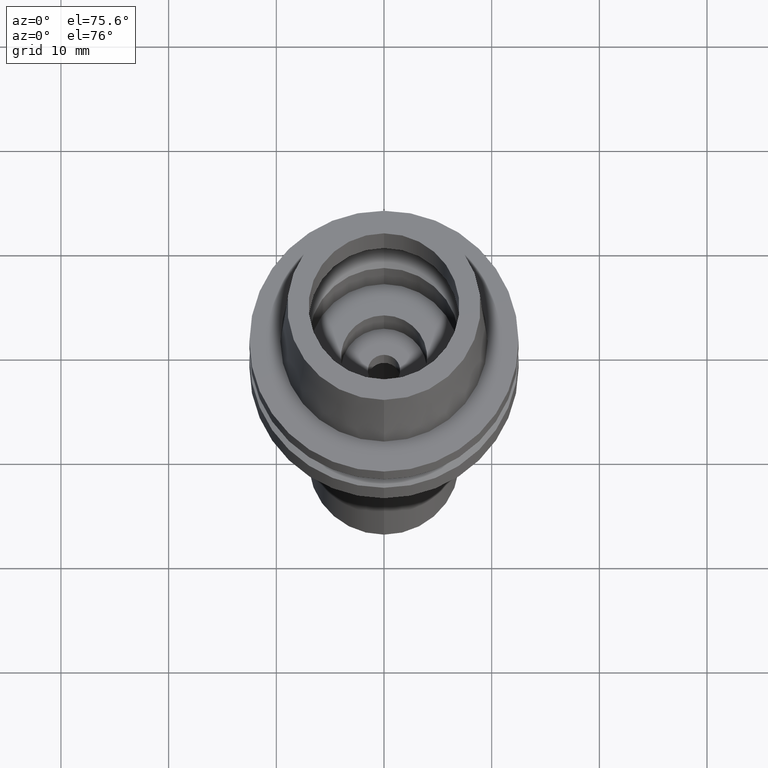
[diagram: clean part render]
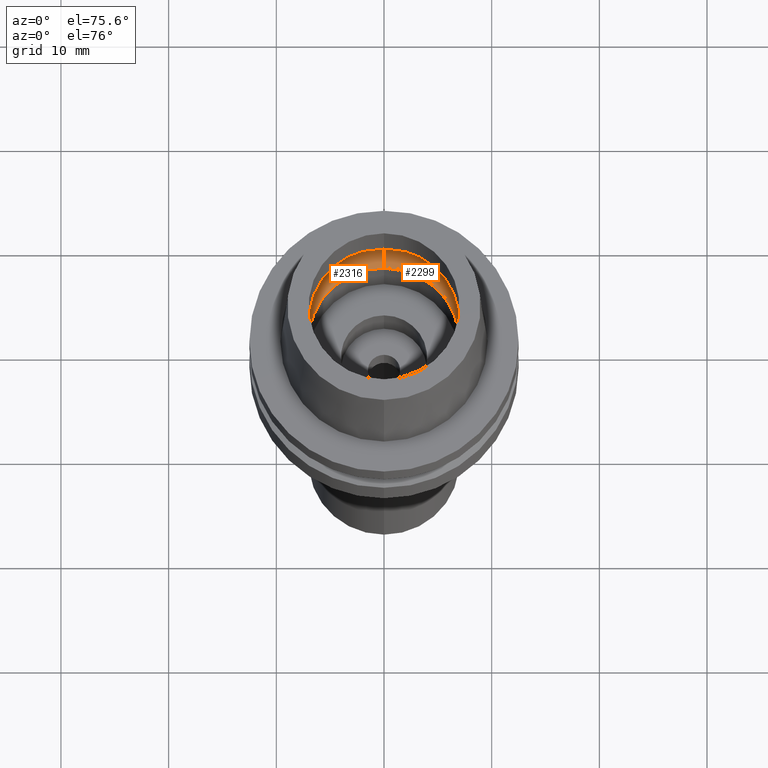
[diagram: same view with one multi-face feature highlighted, each face labeled with its STEP entity id]
A machine part, auxiliary view. The highlighted faces form ONE feature: a constant-radius fillet chain: 2 tangent blend faces with common blend radius 3 mm. The faces share edges in the B-rep.
Their STEP definitions:
[1] entity #2299 (Torus):
#62 = CARTESIAN_POINT ( 'NONE',  ( 0.0000000000000000000, 5.200000000000000178, 2.449999999999999734 ) ) ;
#120 = DIRECTION ( 'NONE',  ( 0.0000000000000000000, 1.000000000000000000, 0.0000000000000000000 ) ) ;
#263 = AXIS2_PLACEMENT_3D ( 'NONE', #2331, #856, #473 ) ;
#386 = VERTEX_POINT ( 'NONE', #974 ) ;
#473 = DIRECTION ( 'NONE',  ( 0.0000000000000000000, -1.000000000000000000, 0.0000000000000000000 ) ) ;
#547 = EDGE_CURVE ( 'NONE', #386, #1169, #1233, .T. ) ;
#589 = CIRCLE ( 'NONE', #1435, 3.000000000000000000 ) ;
#741 = CARTESIAN_POINT ( 'NONE',  ( 0.0000000000000000000, -8.200000000000001066, 2.449999999999999734 ) ) ;
#856 = DIRECTION ( 'NONE',  ( 0.0000000000000000000, 0.0000000000000000000, 1.000000000000000000 ) ) ;
#923 = CIRCLE ( 'NONE', #2528, 3.000000000000000000 ) ;
#934 = CARTESIAN_POINT ( 'NONE',  ( 0.0000000000000000000, 7.000000000000000000, 0.05000000000000000278 ) ) ;
#961 = EDGE_CURVE ( 'NONE', #1829, #2201, #2268, .T. ) ;
#974 = CARTESIAN_POINT ( 'NONE',  ( 0.0000000000000000000, -7.000000000000000000, 0.05000000000000000278 ) ) ;
#1022 = EDGE_CURVE ( 'NONE', #386, #2201, #589, .T. ) ;
#1030 = CARTESIAN_POINT ( 'NONE',  ( 0.0000000000000000000, 0.0000000000000000000, 2.449999999999999734 ) ) ;
#1163 = CARTESIAN_POINT ( 'NONE',  ( 0.0000000000000000000, 0.0000000000000000000, 2.449999999999999734 ) ) ;
#1169 = VERTEX_POINT ( 'NONE', #934 ) ;
#1205 = DIRECTION ( 'NONE',  ( 0.0000000000000000000, 1.000000000000000000, 0.0000000000000000000 ) ) ;
#1233 = CIRCLE ( 'NONE', #263, 7.000000000000000000 ) ;
#1310 = DIRECTION ( 'NONE',  ( 0.0000000000000000000, 0.0000000000000000000, 1.000000000000000000 ) ) ;
#1311 = AXIS2_PLACEMENT_3D ( 'NONE', #1163, #1310, #120 ) ;
#1339 = EDGE_CURVE ( 'NONE', #1169, #1829, #923, .T. ) ;
#1432 = DIRECTION ( 'NONE',  ( 1.000000000000000000, 0.0000000000000000000, 0.0000000000000000000 ) ) ;
#1435 = AXIS2_PLACEMENT_3D ( 'NONE', #1618, #2229, #2459 ) ;
#1618 = CARTESIAN_POINT ( 'NONE',  ( 0.0000000000000000000, -5.200000000000000178, 2.449999999999999734 ) ) ;
#1664 = CARTESIAN_POINT ( 'NONE',  ( 0.0000000000000000000, 8.200000000000001066, 2.449999999999999734 ) ) ;
#1817 = DIRECTION ( 'NONE',  ( 0.0000000000000000000, 0.0000000000000000000, -1.000000000000000000 ) ) ;
#1829 = VERTEX_POINT ( 'NONE', #1664 ) ;
#2012 = ORIENTED_EDGE ( 'NONE', *, *, #1339, .F. ) ;
#2117 = ORIENTED_EDGE ( 'NONE', *, *, #961, .F. ) ;
#2181 = FACE_OUTER_BOUND ( 'NONE', #2681, .T. ) ;
#2201 = VERTEX_POINT ( 'NONE', #741 ) ;
#2229 = DIRECTION ( 'NONE',  ( -1.000000000000000000, 0.0000000000000000000, 0.0000000000000000000 ) ) ;
#2268 = CIRCLE ( 'NONE', #2360, 8.200000000000001066 ) ;
#2299 = ADVANCED_FACE ( 'NONE', ( #2181 ), #2488, .F. ) ;
#2331 = CARTESIAN_POINT ( 'NONE',  ( 0.0000000000000000000, 0.0000000000000000000, 0.05000000000000000278 ) ) ;
#2360 = AXIS2_PLACEMENT_3D ( 'NONE', #1030, #1817, #1205 ) ;
#2450 = ORIENTED_EDGE ( 'NONE', *, *, #1022, .T. ) ;
#2459 = DIRECTION ( 'NONE',  ( 0.0000000000000000000, -0.5999999999999998668, -0.8000000000000001554 ) ) ;
#2488 = TOROIDAL_SURFACE ( 'NONE', #1311, 5.200000000000000178, 3.000000000000000000 ) ;
#2491 = ORIENTED_EDGE ( 'NONE', *, *, #547, .F. ) ;
#2501 = DIRECTION ( 'NONE',  ( 0.0000000000000000000, 0.5999999999999998668, -0.8000000000000001554 ) ) ;
#2528 = AXIS2_PLACEMENT_3D ( 'NONE', #62, #1432, #2501 ) ;
#2681 = EDGE_LOOP ( 'NONE', ( #2491, #2450, #2117, #2012 ) ) ;
[2] entity #2316 (Torus):
#62 = CARTESIAN_POINT ( 'NONE',  ( 0.0000000000000000000, 5.200000000000000178, 2.449999999999999734 ) ) ;
#224 = EDGE_CURVE ( 'NONE', #1169, #386, #531, .T. ) ;
#386 = VERTEX_POINT ( 'NONE', #974 ) ;
#531 = CIRCLE ( 'NONE', #1472, 7.000000000000000000 ) ;
#589 = CIRCLE ( 'NONE', #1435, 3.000000000000000000 ) ;
#741 = CARTESIAN_POINT ( 'NONE',  ( 0.0000000000000000000, -8.200000000000001066, 2.449999999999999734 ) ) ;
#767 = DIRECTION ( 'NONE',  ( 0.0000000000000000000, 1.000000000000000000, 0.0000000000000000000 ) ) ;
#822 = FACE_OUTER_BOUND ( 'NONE', #2185, .T. ) ;
#921 = CARTESIAN_POINT ( 'NONE',  ( 0.0000000000000000000, 0.0000000000000000000, 0.05000000000000000278 ) ) ;
#923 = CIRCLE ( 'NONE', #2528, 3.000000000000000000 ) ;
#934 = CARTESIAN_POINT ( 'NONE',  ( 0.0000000000000000000, 7.000000000000000000, 0.05000000000000000278 ) ) ;
#974 = CARTESIAN_POINT ( 'NONE',  ( 0.0000000000000000000, -7.000000000000000000, 0.05000000000000000278 ) ) ;
#978 = CARTESIAN_POINT ( 'NONE',  ( 0.0000000000000000000, 0.0000000000000000000, 2.449999999999999734 ) ) ;
#1022 = EDGE_CURVE ( 'NONE', #386, #2201, #589, .T. ) ;
#1058 = CIRCLE ( 'NONE', #2626, 8.200000000000001066 ) ;
#1169 = VERTEX_POINT ( 'NONE', #934 ) ;
#1339 = EDGE_CURVE ( 'NONE', #1169, #1829, #923, .T. ) ;
#1369 = DIRECTION ( 'NONE',  ( 0.0000000000000000000, -1.000000000000000000, 0.0000000000000000000 ) ) ;
#1395 = AXIS2_PLACEMENT_3D ( 'NONE', #978, #1819, #1421 ) ;
#1421 = DIRECTION ( 'NONE',  ( 0.0000000000000000000, 1.000000000000000000, 0.0000000000000000000 ) ) ;
#1432 = DIRECTION ( 'NONE',  ( 1.000000000000000000, 0.0000000000000000000, 0.0000000000000000000 ) ) ;
#1435 = AXIS2_PLACEMENT_3D ( 'NONE', #1618, #2229, #2459 ) ;
#1472 = AXIS2_PLACEMENT_3D ( 'NONE', #921, #2644, #767 ) ;
#1546 = CARTESIAN_POINT ( 'NONE',  ( 0.0000000000000000000, 0.0000000000000000000, 2.449999999999999734 ) ) ;
#1574 = DIRECTION ( 'NONE',  ( 0.0000000000000000000, 0.0000000000000000000, -1.000000000000000000 ) ) ;
#1618 = CARTESIAN_POINT ( 'NONE',  ( 0.0000000000000000000, -5.200000000000000178, 2.449999999999999734 ) ) ;
#1664 = CARTESIAN_POINT ( 'NONE',  ( 0.0000000000000000000, 8.200000000000001066, 2.449999999999999734 ) ) ;
#1819 = DIRECTION ( 'NONE',  ( 0.0000000000000000000, 0.0000000000000000000, 1.000000000000000000 ) ) ;
#1829 = VERTEX_POINT ( 'NONE', #1664 ) ;
#2013 = ORIENTED_EDGE ( 'NONE', *, *, #1339, .T. ) ;
#2035 = ORIENTED_EDGE ( 'NONE', *, *, #2277, .F. ) ;
#2185 = EDGE_LOOP ( 'NONE', ( #2035, #2478, #2606, #2013 ) ) ;
#2201 = VERTEX_POINT ( 'NONE', #741 ) ;
#2223 = TOROIDAL_SURFACE ( 'NONE', #1395, 5.200000000000000178, 3.000000000000000000 ) ;
#2229 = DIRECTION ( 'NONE',  ( -1.000000000000000000, 0.0000000000000000000, 0.0000000000000000000 ) ) ;
#2277 = EDGE_CURVE ( 'NONE', #2201, #1829, #1058, .T. ) ;
#2316 = ADVANCED_FACE ( 'NONE', ( #822 ), #2223, .F. ) ;
#2459 = DIRECTION ( 'NONE',  ( 0.0000000000000000000, -0.5999999999999998668, -0.8000000000000001554 ) ) ;
#2478 = ORIENTED_EDGE ( 'NONE', *, *, #1022, .F. ) ;
#2501 = DIRECTION ( 'NONE',  ( 0.0000000000000000000, 0.5999999999999998668, -0.8000000000000001554 ) ) ;
#2528 = AXIS2_PLACEMENT_3D ( 'NONE', #62, #1432, #2501 ) ;
#2606 = ORIENTED_EDGE ( 'NONE', *, *, #224, .F. ) ;
#2626 = AXIS2_PLACEMENT_3D ( 'NONE', #1546, #1574, #1369 ) ;
#2644 = DIRECTION ( 'NONE',  ( 0.0000000000000000000, 0.0000000000000000000, 1.000000000000000000 ) ) ;